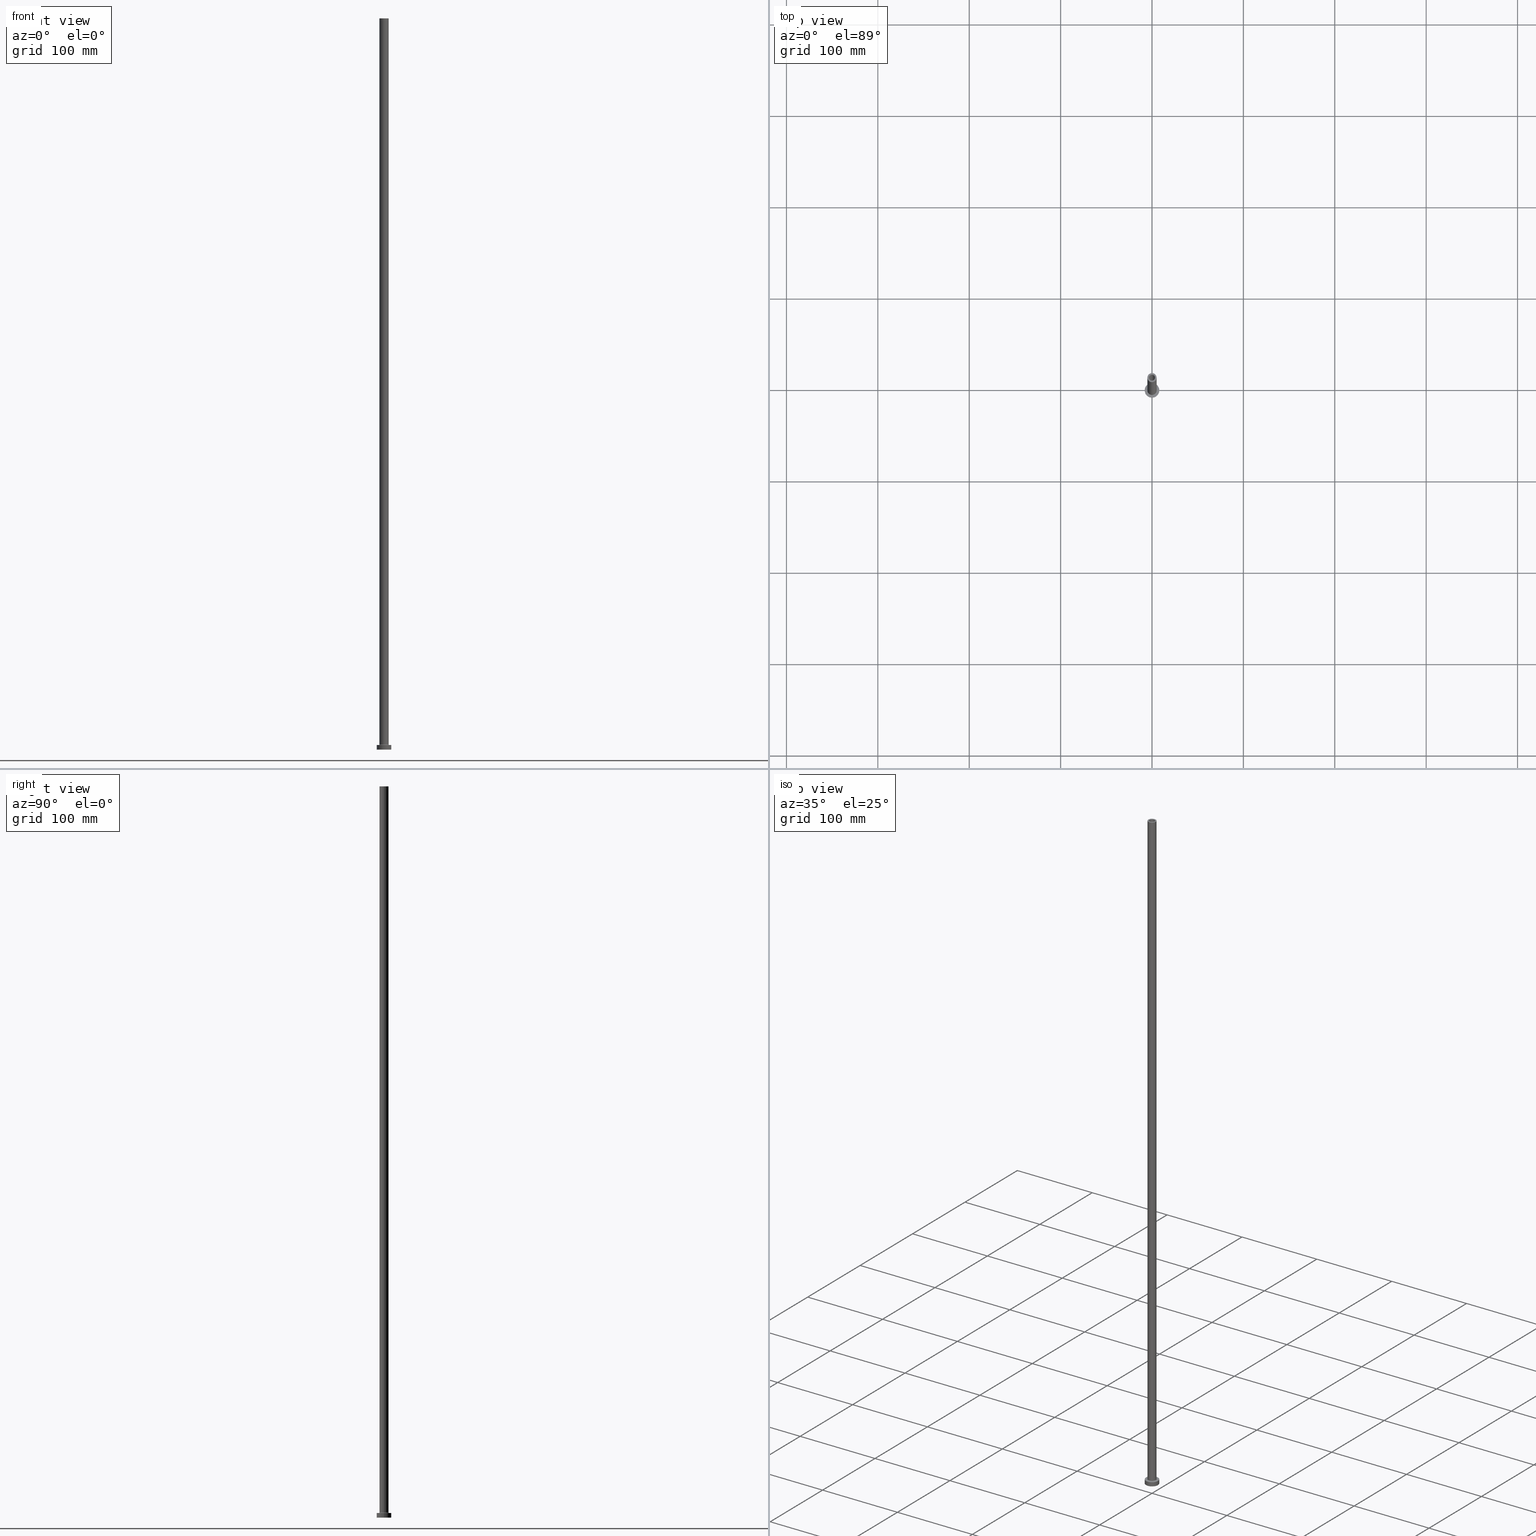
[diagram: canonical four-view strip — front | top / right | iso, engineering-drawing reading convention]
A machine part, canonical four-view strip (front | top / right | iso — engineering-drawing reading convention). The complete STEP part file that produces these views, byte-faithful:
ISO-10303-21;
HEADER;
FILE_DESCRIPTION (( 'STEP AP203' ),
    '1' );
FILE_NAME ('26d1.STEP',
    '2023-02-13T13:59:32',
    ( '' ),
    ( '' ),
    'SwSTEP 2.0',
    'SolidWorks 2019',
    '' );
FILE_SCHEMA (( 'CONFIG_CONTROL_DESIGN' ));
ENDSEC;

DATA;
#1 = DIRECTION ( 'NONE',  ( 0.000000000000000000, 0.000000000000000000, -1.000000000000000000 ) ) ;
#2 = PERSON_AND_ORGANIZATION_ROLE ( 'design_owner' ) ;
#3 = EDGE_LOOP ( 'NONE', ( #334, #10 ) ) ;
#4 = CIRCLE ( 'NONE', #84, 5.500000000000000000 ) ;
#5 = CYLINDRICAL_SURFACE ( 'NONE', #174, 8.000000000000000000 ) ;
#6 = CARTESIAN_POINT ( 'NONE',  ( -3.399999999999999911, 0.000000000000000000, 764.6166522241369421 ) ) ;
#7 = ORIENTED_EDGE ( 'NONE', *, *, #248, .F. ) ;
#8 = DIRECTION ( 'NONE',  ( 0.000000000000000000, 0.000000000000000000, 1.000000000000000000 ) ) ;
#9 = EDGE_CURVE ( 'NONE', #111, #179, #373, .T. ) ;
#10 = ORIENTED_EDGE ( 'NONE', *, *, #263, .F. ) ;
#11 = CARTESIAN_POINT ( 'NONE',  ( -3.250000000000000444, 0.000000000000000000, 800.0000000000000000 ) ) ;
#12 = AXIS2_PLACEMENT_3D ( 'NONE', #275, #303, #158 ) ;
#13 = CARTESIAN_POINT ( 'NONE',  ( 3.250000000000000444, 3.980102097228898231E-16, 800.0000000000000000 ) ) ;
#14 = EDGE_LOOP ( 'NONE', ( #214, #176, #358, #128 ) ) ;
#15 = CARTESIAN_POINT ( 'NONE',  ( 3.399999999999999911, 4.163799117100999573E-16, 764.6166522241369421 ) ) ;
#16 = CC_DESIGN_PERSON_AND_ORGANIZATION_ASSIGNMENT ( #333, #149, ( #56 ) ) ;
#17 = ADVANCED_FACE ( 'NONE', ( #311 ), #273, .T. ) ;
#18 = EDGE_LOOP ( 'NONE', ( #101, #215, #362, #256 ) ) ;
#19 = COORDINATED_UNIVERSAL_TIME_OFFSET ( 1, 0, .AHEAD. ) ;
#20 = ADVANCED_FACE ( 'NONE', ( #31 ), #68, .F. ) ;
#21 = DIRECTION ( 'NONE',  ( -0.000000000000000000, -0.000000000000000000, -1.000000000000000000 ) ) ;
#22 = CARTESIAN_POINT ( 'NONE',  ( -5.500000000000000000, 6.735557395310442023E-16, 4.999999999999975131 ) ) ;
#23 = CIRCLE ( 'NONE', #434, 3.250000000000000444 ) ;
#24 = ADVANCED_BREP_SHAPE_REPRESENTATION ( '26d1', ( #45, #208 ), #440 ) ;
#25 = ORIENTED_EDGE ( 'NONE', *, *, #57, .T. ) ;
#26 = EDGE_CURVE ( 'NONE', #37, #186, #125, .T. ) ;
#27 = CARTESIAN_POINT ( 'NONE',  ( 0.000000000000000000, 0.000000000000000000, 800.0000000000000000 ) ) ;
#28 = AXIS2_PLACEMENT_3D ( 'NONE', #203, #75, #353 ) ;
#29 = DIRECTION ( 'NONE',  ( 1.000000000000000000, 0.000000000000000000, 0.000000000000000000 ) ) ;
#30 = CARTESIAN_POINT ( 'NONE',  ( 0.000000000000000000, 0.000000000000000000, 5.000000000000000000 ) ) ;
#31 = FACE_OUTER_BOUND ( 'NONE', #14, .T. ) ;
#32 = CARTESIAN_POINT ( 'NONE',  ( 0.000000000000000000, 0.000000000000000000, 764.6166522241369421 ) ) ;
#33 = PERSON_AND_ORGANIZATION ( #227, #357 ) ;
#34 = ADVANCED_FACE ( 'NONE', ( #129 ), #5, .T. ) ;
#35 = CIRCLE ( 'NONE', #299, 8.000000000000000000 ) ;
#36 = AXIS2_PLACEMENT_3D ( 'NONE', #138, #283, #387 ) ;
#37 = VERTEX_POINT ( 'NONE', #250 ) ;
#38 = DIRECTION ( 'NONE',  ( 0.000000000000000000, 0.000000000000000000, 1.000000000000000000 ) ) ;
#39 = ORIENTED_EDGE ( 'NONE', *, *, #81, .T. ) ;
#40 = CARTESIAN_POINT ( 'NONE',  ( 0.000000000000000000, 0.000000000000000000, 0.000000000000000000 ) ) ;
#41 = DIRECTION ( 'NONE',  ( 0.000000000000000000, 0.000000000000000000, -1.000000000000000000 ) ) ;
#42 = ORIENTED_EDGE ( 'NONE', *, *, #26, .T. ) ;
#43 = ADVANCED_FACE ( 'NONE', ( #425, #106 ), #235, .F. ) ;
#44 = CARTESIAN_POINT ( 'NONE',  ( 8.000000000000000000, 9.797174393178825657E-16, 5.000000000000000000 ) ) ;
#45 = MANIFOLD_SOLID_BREP ( 'Odebrat vysunut�m4', #237 ) ;
#46 = CIRCLE ( 'NONE', #454, 3.250000000000000444 ) ;
#47 = VERTEX_POINT ( 'NONE', #327 ) ;
#48 = VECTOR ( 'NONE', #126, 1000.000000000000000 ) ;
#49 = LOCAL_TIME ( 14, 59, 32.00000000000000000, #19 ) ;
#50 = DIRECTION ( 'NONE',  ( 0.000000000000000000, 0.000000000000000000, 1.000000000000000000 ) ) ;
#51 = CALENDAR_DATE ( 2023, 13, 2 ) ;
#52 = VERTEX_POINT ( 'NONE', #352 ) ;
#53 = COORDINATED_UNIVERSAL_TIME_OFFSET ( 1, 0, .AHEAD. ) ;
#54 = DIRECTION ( 'NONE',  ( 0.000000000000000000, -1.000000000000000000, 0.000000000000000000 ) ) ;
#55 = VECTOR ( 'NONE', #293, 1000.000000000000000 ) ;
#56 = PRODUCT_DEFINITION_FORMATION_WITH_SPECIFIED_SOURCE ( 'LIBOVOLN�', '', #105, .NOT_KNOWN. ) ;
#57 = EDGE_CURVE ( 'NONE', #412, #390, #196, .T. ) ;
#58 = CARTESIAN_POINT ( 'NONE',  ( 5.000000000000000000, 6.123233995736766282E-16, 5.499999999999949374 ) ) ;
#59 = CIRCLE ( 'NONE', #229, 5.000000000000000000 ) ;
#60 = ORIENTED_EDGE ( 'NONE', *, *, #97, .T. ) ;
#61 = FACE_OUTER_BOUND ( 'NONE', #452, .T. ) ;
#62 = APPLICATION_PROTOCOL_DEFINITION ( 'international standard', 'config_control_design', 1994, #65 ) ;
#63 = EDGE_CURVE ( 'NONE', #74, #290, #392, .T. ) ;
#64 = ORIENTED_EDGE ( 'NONE', *, *, #248, .T. ) ;
#65 = APPLICATION_CONTEXT ( 'configuration controlled 3d designs of mechanical parts and assemblies' ) ;
#66 = CARTESIAN_POINT ( 'NONE',  ( -3.399999999999999911, 0.000000000000000000, 0.000000000000000000 ) ) ;
#67 = ORIENTED_EDGE ( 'NONE', *, *, #306, .T. ) ;
#68 = TOROIDAL_SURFACE ( 'NONE', #401, 5.500000000000000000, 0.5000000000000000000 ) ;
#69 = LOCAL_TIME ( 14, 59, 32.00000000000000000, #53 ) ;
#70 = CARTESIAN_POINT ( 'NONE',  ( 0.000000000000000000, 0.000000000000000000, 5.000000000000000000 ) ) ;
#71 = DIRECTION ( 'NONE',  ( 0.000000000000000000, 0.000000000000000000, 1.000000000000000000 ) ) ;
#72 = SHAPE_DEFINITION_REPRESENTATION ( #272, #24 ) ;
#73 = ORIENTED_EDGE ( 'NONE', *, *, #306, .F. ) ;
#74 = VERTEX_POINT ( 'NONE', #11 ) ;
#75 = DIRECTION ( 'NONE',  ( 0.000000000000000000, 0.000000000000000000, 1.000000000000000000 ) ) ;
#76 = EDGE_CURVE ( 'NONE', #37, #436, #319, .T. ) ;
#77 = VERTEX_POINT ( 'NONE', #433 ) ;
#78 = VECTOR ( 'NONE', #246, 1000.000000000000000 ) ;
#79 = ORIENTED_EDGE ( 'NONE', *, *, #76, .F. ) ;
#80 = DIRECTION ( 'NONE',  ( 1.000000000000000000, 0.000000000000000000, 0.000000000000000000 ) ) ;
#81 = EDGE_CURVE ( 'NONE', #348, #436, #363, .T. ) ;
#82 = ORIENTED_EDGE ( 'NONE', *, *, #124, .T. ) ;
#83 = EDGE_LOOP ( 'NONE', ( #82, #332 ) ) ;
#84 = AXIS2_PLACEMENT_3D ( 'NONE', #30, #317, #280 ) ;
#85 = ORIENTED_EDGE ( 'NONE', *, *, #343, .F. ) ;
#86 = CARTESIAN_POINT ( 'NONE',  ( -8.000000000000000000, 0.000000000000000000, 5.000000000000000000 ) ) ;
#87 = PERSON_AND_ORGANIZATION_ROLE ( 'classification_officer' ) ;
#88 = CARTESIAN_POINT ( 'NONE',  ( 3.250000000000000444, 3.980102097228898231E-16, 800.0000000000000000 ) ) ;
#89 = DIRECTION ( 'NONE',  ( 1.000000000000000000, 0.000000000000000000, 0.000000000000000000 ) ) ;
#90 = DIRECTION ( 'NONE',  ( 1.000000000000000000, 0.000000000000000000, 0.000000000000000000 ) ) ;
#91 = AXIS2_PLACEMENT_3D ( 'NONE', #102, #378, #384 ) ;
#92 = DIRECTION ( 'NONE',  ( 1.000000000000000000, 0.000000000000000000, 0.000000000000000000 ) ) ;
#93 = UNCERTAINTY_MEASURE_WITH_UNIT (LENGTH_MEASURE( 1.000000000000000082E-05 ), #154, 'distance_accuracy_value', 'NONE');
#94 = AXIS2_PLACEMENT_3D ( 'NONE', #274, #108, #80 ) ;
#95 = EDGE_CURVE ( 'NONE', #77, #253, #23, .T. ) ;
#96 = DIRECTION ( 'NONE',  ( -1.000000000000000000, 1.224646799147351482E-16, 0.000000000000000000 ) ) ;
#97 = EDGE_CURVE ( 'NONE', #179, #111, #189, .T. ) ;
#98 = APPLICATION_PROTOCOL_DEFINITION ( 'international standard', 'config_control_design', 1994, #277 ) ;
#99 = ORIENTED_EDGE ( 'NONE', *, *, #449, .T. ) ;
#100 = EDGE_LOOP ( 'NONE', ( #73, #422, #439, #205 ) ) ;
#101 = ORIENTED_EDGE ( 'NONE', *, *, #97, .F. ) ;
#102 = CARTESIAN_POINT ( 'NONE',  ( 0.000000000000000000, 0.000000000000000000, 764.6166522241369421 ) ) ;
#103 = DIRECTION ( 'NONE',  ( 1.000000000000000000, 0.000000000000000000, -0.000000000000000000 ) ) ;
#104 = VECTOR ( 'NONE', #245, 1000.000000000000000 ) ;
#105 = PRODUCT ( '26d1', '26d1', '', ( #232 ) ) ;
#106 = FACE_OUTER_BOUND ( 'NONE', #114, .T. ) ;
#107 = ADVANCED_FACE ( 'NONE', ( #152 ), #443, .T. ) ;
#108 = DIRECTION ( 'NONE',  ( 0.000000000000000000, 0.000000000000000000, 1.000000000000000000 ) ) ;
#109 = APPROVAL_STATUS ( 'not_yet_approved' ) ;
#110 = LINE ( 'NONE', #288, #78 ) ;
#111 = VERTEX_POINT ( 'NONE', #86 ) ;
#112 = DIRECTION ( 'NONE',  ( 1.000000000000000000, 0.000000000000000000, 0.000000000000000000 ) ) ;
#113 = AXIS2_PLACEMENT_3D ( 'NONE', #368, #259, #142 ) ;
#114 = EDGE_LOOP ( 'NONE', ( #85, #355 ) ) ;
#115 = ORIENTED_EDGE ( 'NONE', *, *, #9, .T. ) ;
#116 = DIRECTION ( 'NONE',  ( 0.000000000000000000, 0.000000000000000000, 1.000000000000000000 ) ) ;
#117 = ORIENTED_EDGE ( 'NONE', *, *, #122, .F. ) ;
#118 = CIRCLE ( 'NONE', #12, 3.399999999999999911 ) ;
#119 = EDGE_LOOP ( 'NONE', ( #286, #25 ) ) ;
#120 = ADVANCED_FACE ( 'NONE', ( #188 ), #261, .F. ) ;
#121 = CARTESIAN_POINT ( 'NONE',  ( -8.000000000000000000, 0.000000000000000000, 5.000000000000000000 ) ) ;
#122 = EDGE_CURVE ( 'NONE', #429, #385, #264, .T. ) ;
#123 = EDGE_LOOP ( 'NONE', ( #292, #415 ) ) ;
#124 = EDGE_CURVE ( 'NONE', #253, #77, #46, .T. ) ;
#125 = CIRCLE ( 'NONE', #207, 5.000000000000000000 ) ;
#126 = DIRECTION ( 'NONE',  ( 0.000000000000000000, 0.000000000000000000, -1.000000000000000000 ) ) ;
#127 = DIRECTION ( 'NONE',  ( 1.000000000000000000, 0.000000000000000000, 0.000000000000000000 ) ) ;
#128 = ORIENTED_EDGE ( 'NONE', *, *, #410, .F. ) ;
#129 = FACE_OUTER_BOUND ( 'NONE', #175, .T. ) ;
#130 = CYLINDRICAL_SURFACE ( 'NONE', #356, 3.399999999999999911 ) ;
#131 = EDGE_CURVE ( 'NONE', #382, #385, #118, .T. ) ;
#132 = DIRECTION ( 'NONE',  ( -0.000000000000000000, -0.000000000000000000, -1.000000000000000000 ) ) ;
#133 = FACE_OUTER_BOUND ( 'NONE', #328, .T. ) ;
#134 = CARTESIAN_POINT ( 'NONE',  ( 8.000000000000000000, 9.797174393178825657E-16, 0.000000000000000000 ) ) ;
#135 = AXIS2_PLACEMENT_3D ( 'NONE', #27, #411, #453 ) ;
#136 = DATE_AND_TIME ( #347, #424 ) ;
#137 = CARTESIAN_POINT ( 'NONE',  ( 0.000000000000000000, 0.000000000000000000, 5.000000000000000000 ) ) ;
#138 = CARTESIAN_POINT ( 'NONE',  ( 0.000000000000000000, 0.000000000000000000, 800.0000000000000000 ) ) ;
#139 = COORDINATED_UNIVERSAL_TIME_OFFSET ( 1, 0, .AHEAD. ) ;
#140 = EDGE_LOOP ( 'NONE', ( #79, #183, #268, #39 ) ) ;
#141 = CARTESIAN_POINT ( 'NONE',  ( 0.000000000000000000, 0.000000000000000000, 800.0000000000000000 ) ) ;
#142 = DIRECTION ( 'NONE',  ( -1.000000000000000000, 0.000000000000000000, 0.000000000000000000 ) ) ;
#143 = ORIENTED_EDGE ( 'NONE', *, *, #409, .T. ) ;
#144 = DIRECTION ( 'NONE',  ( -1.000000000000000000, 0.000000000000000000, 0.000000000000000000 ) ) ;
#145 = ADVANCED_FACE ( 'NONE', ( #61 ), #307, .F. ) ;
#146 = AXIS2_PLACEMENT_3D ( 'NONE', #169, #242, #202 ) ;
#147 = ORIENTED_EDGE ( 'NONE', *, *, #343, .T. ) ;
#148 = VERTEX_POINT ( 'NONE', #134 ) ;
#149 = PERSON_AND_ORGANIZATION_ROLE ( 'creator' ) ;
#150 = ORIENTED_EDGE ( 'NONE', *, *, #95, .F. ) ;
#151 = DATE_AND_TIME ( #51, #49 ) ;
#152 = FACE_OUTER_BOUND ( 'NONE', #18, .T. ) ;
#153 = LOCAL_TIME ( 14, 59, 32.00000000000000000, #139 ) ;
#154 =( LENGTH_UNIT ( ) NAMED_UNIT ( * ) SI_UNIT ( .MILLI., .METRE. ) );
#155 = CARTESIAN_POINT ( 'NONE',  ( 0.000000000000000000, 0.000000000000000000, 755.0000000000000000 ) ) ;
#156 = AXIS2_PLACEMENT_3D ( 'NONE', #269, #420, #456 ) ;
#157 = AXIS2_PLACEMENT_3D ( 'NONE', #155, #266, #90 ) ;
#158 = DIRECTION ( 'NONE',  ( 1.000000000000000000, 0.000000000000000000, 0.000000000000000000 ) ) ;
#159 = PERSON_AND_ORGANIZATION ( #227, #357 ) ;
#160 = ADVANCED_FACE ( 'NONE', ( #271, #197 ), #204, .T. ) ;
#161 = CIRCLE ( 'NONE', #94, 8.000000000000000000 ) ;
#162 = DIRECTION ( 'NONE',  ( 0.000000000000000000, 0.000000000000000000, 1.000000000000000000 ) ) ;
#163 = CIRCLE ( 'NONE', #219, 0.5000000000000004441 ) ;
#164 = COORDINATED_UNIVERSAL_TIME_OFFSET ( 1, 0, .AHEAD. ) ;
#165 = ORIENTED_EDGE ( 'NONE', *, *, #457, .T. ) ;
#166 = DIRECTION ( 'NONE',  ( -1.000000000000000000, 0.000000000000000000, 0.000000000000000000 ) ) ;
#167 = FACE_OUTER_BOUND ( 'NONE', #3, .T. ) ;
#168 = PERSON_AND_ORGANIZATION ( #227, #357 ) ;
#169 = CARTESIAN_POINT ( 'NONE',  ( 0.000000000000000000, 0.000000000000000000, 800.0000000000000000 ) ) ;
#170 = CARTESIAN_POINT ( 'NONE',  ( -5.500000000000000000, 6.735557395310442023E-16, 5.499999999999949374 ) ) ;
#171 = CC_DESIGN_DATE_AND_TIME_ASSIGNMENT ( #136, #461, ( #265 ) ) ;
#172 = DIRECTION ( 'NONE',  ( -1.000000000000000000, 0.000000000000000000, 0.000000000000000000 ) ) ;
#173 = CARTESIAN_POINT ( 'NONE',  ( 5.500000000000000000, 0.000000000000000000, 4.999999999999975131 ) ) ;
#174 = AXIS2_PLACEMENT_3D ( 'NONE', #70, #285, #418 ) ;
#175 = EDGE_LOOP ( 'NONE', ( #432, #398, #99, #147 ) ) ;
#176 = ORIENTED_EDGE ( 'NONE', *, *, #193, .T. ) ;
#177 = DIRECTION ( 'NONE',  ( 0.000000000000000000, 0.000000000000000000, 1.000000000000000000 ) ) ;
#178 = APPROVAL ( #276, 'NEUR�EN�' ) ;
#179 = VERTEX_POINT ( 'NONE', #450 ) ;
#180 = DIRECTION ( 'NONE',  ( 0.000000000000000000, 0.000000000000000000, 1.000000000000000000 ) ) ;
#181 = AXIS2_PLACEMENT_3D ( 'NONE', #254, #335, #223 ) ;
#182 = CIRCLE ( 'NONE', #289, 3.399999999999999911 ) ;
#183 = ORIENTED_EDGE ( 'NONE', *, *, #405, .F. ) ;
#184 = LINE ( 'NONE', #15, #55 ) ;
#185 = APPROVAL_DATE_TIME ( #151, #178 ) ;
#186 = VERTEX_POINT ( 'NONE', #351 ) ;
#187 = PRODUCT_RELATED_PRODUCT_CATEGORY ( 'detail', '', ( #105 ) ) ;
#188 = FACE_OUTER_BOUND ( 'NONE', #213, .T. ) ;
#189 = CIRCLE ( 'NONE', #191, 8.000000000000000000 ) ;
#190 = CARTESIAN_POINT ( 'NONE',  ( -5.000000000000000000, 0.000000000000000000, 800.0000000000000000 ) ) ;
#191 = AXIS2_PLACEMENT_3D ( 'NONE', #366, #296, #247 ) ;
#192 = VECTOR ( 'NONE', #408, 1000.000000000000000 ) ;
#193 = EDGE_CURVE ( 'NONE', #348, #412, #423, .T. ) ;
#194 = FACE_BOUND ( 'NONE', #83, .T. ) ;
#195 = ORIENTED_EDGE ( 'NONE', *, *, #63, .T. ) ;
#196 = CIRCLE ( 'NONE', #341, 5.500000000000000000 ) ;
#197 = FACE_OUTER_BOUND ( 'NONE', #295, .T. ) ;
#198 = CC_DESIGN_APPROVAL ( #354, ( #301 ) ) ;
#199 = DIRECTION ( 'NONE',  ( 1.000000000000000000, 0.000000000000000000, -0.000000000000000000 ) ) ;
#200 = DIRECTION ( 'NONE',  ( 1.000000000000000000, 0.000000000000000000, 0.000000000000000000 ) ) ;
#201 = ORIENTED_EDGE ( 'NONE', *, *, #216, .T. ) ;
#202 = DIRECTION ( 'NONE',  ( 1.000000000000000000, 0.000000000000000000, 0.000000000000000000 ) ) ;
#203 = CARTESIAN_POINT ( 'NONE',  ( 0.000000000000000000, 0.000000000000000000, 5.000000000000000000 ) ) ;
#204 = PLANE ( 'NONE',  #135 ) ;
#205 = ORIENTED_EDGE ( 'NONE', *, *, #435, .T. ) ;
#206 = FACE_OUTER_BOUND ( 'NONE', #100, .T. ) ;
#207 = AXIS2_PLACEMENT_3D ( 'NONE', #141, #8, #112 ) ;
#208 = AXIS2_PLACEMENT_3D ( 'NONE', #376, #318, #127 ) ;
#209 = ADVANCED_FACE ( 'NONE', ( #194, #167 ), #312, .F. ) ;
#210 = ORIENTED_EDGE ( 'NONE', *, *, #193, .F. ) ;
#211 = DIRECTION ( 'NONE',  ( -0.000000000000000000, -0.000000000000000000, -1.000000000000000000 ) ) ;
#212 = CYLINDRICAL_SURFACE ( 'NONE', #308, 3.250000000000000444 ) ;
#213 = EDGE_LOOP ( 'NONE', ( #210, #230, #257, #386 ) ) ;
#214 = ORIENTED_EDGE ( 'NONE', *, *, #81, .F. ) ;
#215 = ORIENTED_EDGE ( 'NONE', *, *, #258, .T. ) ;
#216 = EDGE_CURVE ( 'NONE', #436, #348, #59, .T. ) ;
#217 = CARTESIAN_POINT ( 'NONE',  ( 0.000000000000000000, 0.000000000000000000, 755.0000000000000000 ) ) ;
#218 = VECTOR ( 'NONE', #399, 1000.000000000000000 ) ;
#219 = AXIS2_PLACEMENT_3D ( 'NONE', #372, #54, #337 ) ;
#220 = ORIENTED_EDGE ( 'NONE', *, *, #131, .T. ) ;
#221 = DIRECTION ( 'NONE',  ( 1.000000000000000000, 0.000000000000000000, 0.000000000000000000 ) ) ;
#222 = CC_DESIGN_DATE_AND_TIME_ASSIGNMENT ( #298, #441, ( #301 ) ) ;
#223 = DIRECTION ( 'NONE',  ( 1.000000000000000000, 0.000000000000000000, 0.000000000000000000 ) ) ;
#224 = CARTESIAN_POINT ( 'NONE',  ( 0.000000000000000000, 0.000000000000000000, 0.000000000000000000 ) ) ;
#225 = EDGE_CURVE ( 'NONE', #390, #412, #4, .T. ) ;
#226 = VECTOR ( 'NONE', #21, 1000.000000000000000 ) ;
#227 = PERSON ( 'NEUR�EN�', 'NEUR�EN�', 'NEUR�EN�', ('NEUR�EN�'), ('NEUR�EN�'), ('NEUR�EN�') ) ;
#228 = LINE ( 'NONE', #190, #226 ) ;
#229 = AXIS2_PLACEMENT_3D ( 'NONE', #239, #71, #200 ) ;
#230 = ORIENTED_EDGE ( 'NONE', *, *, #216, .F. ) ;
#231 = CYLINDRICAL_SURFACE ( 'NONE', #91, 3.399999999999999911 ) ;
#232 = MECHANICAL_CONTEXT ( 'NONE', #277, 'mechanical' ) ;
#233 = ORIENTED_EDGE ( 'NONE', *, *, #444, .F. ) ;
#234 = ADVANCED_FACE ( 'NONE', ( #427 ), #297, .T. ) ;
#235 = PLANE ( 'NONE',  #236 ) ;
#236 = AXIS2_PLACEMENT_3D ( 'NONE', #40, #177, #199 ) ;
#237 = CLOSED_SHELL ( 'NONE', ( #344, #338, #20, #17, #107, #34, #389, #43, #234, #160, #120, #371, #209, #145 ) ) ;
#238 = CARTESIAN_POINT ( 'NONE',  ( 3.399999999999999911, 4.163799117100999573E-16, 0.000000000000000000 ) ) ;
#239 = CARTESIAN_POINT ( 'NONE',  ( 0.000000000000000000, 0.000000000000000000, 5.499999999999949374 ) ) ;
#240 = CC_DESIGN_APPROVAL ( #291, ( #265 ) ) ;
#241 = APPROVAL_DATE_TIME ( #359, #354 ) ;
#242 = DIRECTION ( 'NONE',  ( 0.000000000000000000, 0.000000000000000000, 1.000000000000000000 ) ) ;
#243 = CARTESIAN_POINT ( 'NONE',  ( 0.000000000000000000, 0.000000000000000000, 800.0000000000000000 ) ) ;
#244 = DIRECTION ( 'NONE',  ( 0.000000000000000000, 0.000000000000000000, 1.000000000000000000 ) ) ;
#245 = DIRECTION ( 'NONE',  ( -0.000000000000000000, -0.000000000000000000, -1.000000000000000000 ) ) ;
#246 = DIRECTION ( 'NONE',  ( 0.000000000000000000, 0.000000000000000000, -1.000000000000000000 ) ) ;
#247 = DIRECTION ( 'NONE',  ( 1.000000000000000000, 0.000000000000000000, 0.000000000000000000 ) ) ;
#248 = EDGE_CURVE ( 'NONE', #290, #74, #320, .T. ) ;
#249 = EDGE_LOOP ( 'NONE', ( #284, #282, #201, #233 ) ) ;
#250 = CARTESIAN_POINT ( 'NONE',  ( 5.000000000000000000, 6.123233995736766282E-16, 800.0000000000000000 ) ) ;
#251 = AXIS2_PLACEMENT_3D ( 'NONE', #217, #180, #329 ) ;
#252 = CIRCLE ( 'NONE', #36, 5.000000000000000000 ) ;
#253 = VERTEX_POINT ( 'NONE', #255 ) ;
#254 = CARTESIAN_POINT ( 'NONE',  ( 0.000000000000000000, 0.000000000000000000, 5.499999999999949374 ) ) ;
#255 = CARTESIAN_POINT ( 'NONE',  ( -3.250000000000000444, 0.000000000000000000, 755.0000000000000000 ) ) ;
#256 = ORIENTED_EDGE ( 'NONE', *, *, #449, .F. ) ;
#257 = ORIENTED_EDGE ( 'NONE', *, *, #410, .T. ) ;
#258 = EDGE_CURVE ( 'NONE', #179, #148, #369, .T. ) ;
#259 = DIRECTION ( 'NONE',  ( -0.000000000000000000, -0.000000000000000000, -1.000000000000000000 ) ) ;
#260 = SECURITY_CLASSIFICATION_LEVEL ( 'unclassified' ) ;
#261 = TOROIDAL_SURFACE ( 'NONE', #407, 5.500000000000000000, 0.5000000000000000000 ) ;
#262 = CARTESIAN_POINT ( 'NONE',  ( 0.000000000000000000, 0.000000000000000000, 800.0000000000000000 ) ) ;
#263 = EDGE_CURVE ( 'NONE', #47, #429, #413, .T. ) ;
#264 = LINE ( 'NONE', #6, #48 ) ;
#265 = PRODUCT_DEFINITION ( 'NEZN�M�', '', #56, #374 ) ;
#266 = DIRECTION ( 'NONE',  ( 0.000000000000000000, 0.000000000000000000, 1.000000000000000000 ) ) ;
#267 = LINE ( 'NONE', #121, #302 ) ;
#268 = ORIENTED_EDGE ( 'NONE', *, *, #444, .T. ) ;
#269 = CARTESIAN_POINT ( 'NONE',  ( 0.000000000000000000, 0.000000000000000000, 800.0000000000000000 ) ) ;
#270 = EDGE_CURVE ( 'NONE', #148, #52, #35, .T. ) ;
#271 = FACE_BOUND ( 'NONE', #360, .T. ) ;
#272 = PRODUCT_DEFINITION_SHAPE ( 'NONE', 'NONE',  #265 ) ;
#273 = CYLINDRICAL_SURFACE ( 'NONE', #300, 5.000000000000000000 ) ;
#274 = CARTESIAN_POINT ( 'NONE',  ( 0.000000000000000000, 0.000000000000000000, 0.000000000000000000 ) ) ;
#275 = CARTESIAN_POINT ( 'NONE',  ( 0.000000000000000000, 0.000000000000000000, 0.000000000000000000 ) ) ;
#276 = APPROVAL_STATUS ( 'not_yet_approved' ) ;
#277 = APPLICATION_CONTEXT ( 'configuration controlled 3d designs of mechanical parts and assemblies' ) ;
#278 = DIRECTION ( 'NONE',  ( 1.000000000000000000, 0.000000000000000000, 0.000000000000000000 ) ) ;
#279 = PLANE ( 'NONE',  #28 ) ;
#280 = DIRECTION ( 'NONE',  ( 1.000000000000000000, 0.000000000000000000, 0.000000000000000000 ) ) ;
#281 = CALENDAR_DATE ( 2023, 13, 2 ) ;
#282 = ORIENTED_EDGE ( 'NONE', *, *, #76, .T. ) ;
#283 = DIRECTION ( 'NONE',  ( 0.000000000000000000, 0.000000000000000000, 1.000000000000000000 ) ) ;
#284 = ORIENTED_EDGE ( 'NONE', *, *, #26, .F. ) ;
#285 = DIRECTION ( 'NONE',  ( -0.000000000000000000, -0.000000000000000000, -1.000000000000000000 ) ) ;
#286 = ORIENTED_EDGE ( 'NONE', *, *, #225, .T. ) ;
#287 = CARTESIAN_POINT ( 'NONE',  ( 5.000000000000000000, 6.123233995736766282E-16, 800.0000000000000000 ) ) ;
#288 = CARTESIAN_POINT ( 'NONE',  ( -3.250000000000000444, 0.000000000000000000, 800.0000000000000000 ) ) ;
#289 = AXIS2_PLACEMENT_3D ( 'NONE', #448, #370, #92 ) ;
#290 = VERTEX_POINT ( 'NONE', #13 ) ;
#291 = APPROVAL ( #349, 'NEUR�EN�' ) ;
#292 = ORIENTED_EDGE ( 'NONE', *, *, #435, .F. ) ;
#293 = DIRECTION ( 'NONE',  ( 0.000000000000000000, 0.000000000000000000, -1.000000000000000000 ) ) ;
#294 = PERSON_AND_ORGANIZATION ( #227, #357 ) ;
#295 = EDGE_LOOP ( 'NONE', ( #428, #42 ) ) ;
#296 = DIRECTION ( 'NONE',  ( 0.000000000000000000, 0.000000000000000000, 1.000000000000000000 ) ) ;
#297 = CYLINDRICAL_SURFACE ( 'NONE', #345, 5.000000000000000000 ) ;
#298 = DATE_AND_TIME ( #336, #69 ) ;
#299 = AXIS2_PLACEMENT_3D ( 'NONE', #224, #50, #89 ) ;
#300 = AXIS2_PLACEMENT_3D ( 'NONE', #315, #211, #172 ) ;
#301 = SECURITY_CLASSIFICATION ( '', '', #260 ) ;
#302 = VECTOR ( 'NONE', #406, 1000.000000000000000 ) ;
#303 = DIRECTION ( 'NONE',  ( -0.000000000000000000, -0.000000000000000000, -1.000000000000000000 ) ) ;
#304 = DATE_AND_TIME ( #281, #393 ) ;
#305 = ORIENTED_EDGE ( 'NONE', *, *, #409, .F. ) ;
#306 = EDGE_CURVE ( 'NONE', #47, #382, #184, .T. ) ;
#307 = CYLINDRICAL_SURFACE ( 'NONE', #156, 3.250000000000000444 ) ;
#308 = AXIS2_PLACEMENT_3D ( 'NONE', #243, #41, #144 ) ;
#309 = APPROVAL_PERSON_ORGANIZATION ( #458, #178, #364 ) ;
#310 = COORDINATED_UNIVERSAL_TIME_OFFSET ( 1, 0, .AHEAD. ) ;
#311 = FACE_OUTER_BOUND ( 'NONE', #249, .T. ) ;
#312 = PLANE ( 'NONE',  #330 ) ;
#313 = CALENDAR_DATE ( 2023, 13, 2 ) ;
#314 = PERSON_AND_ORGANIZATION_ROLE ( 'creator' ) ;
#315 = CARTESIAN_POINT ( 'NONE',  ( 0.000000000000000000, 0.000000000000000000, 800.0000000000000000 ) ) ;
#316 = FACE_OUTER_BOUND ( 'NONE', #365, .T. ) ;
#317 = DIRECTION ( 'NONE',  ( -0.000000000000000000, -0.000000000000000000, -1.000000000000000000 ) ) ;
#318 = DIRECTION ( 'NONE',  ( 0.000000000000000000, 0.000000000000000000, 1.000000000000000000 ) ) ;
#319 = LINE ( 'NONE', #287, #104 ) ;
#320 = CIRCLE ( 'NONE', #446, 3.250000000000000444 ) ;
#321 = DIRECTION ( 'NONE',  ( 0.000000000000000000, 0.000000000000000000, 1.000000000000000000 ) ) ;
#322 = CC_DESIGN_PERSON_AND_ORGANIZATION_ASSIGNMENT ( #168, #314, ( #265 ) ) ;
#323 = ORIENTED_EDGE ( 'NONE', *, *, #367, .T. ) ;
#324 = DIRECTION ( 'NONE',  ( 0.000000000000000000, 0.000000000000000000, 1.000000000000000000 ) ) ;
#325 = DIRECTION ( 'NONE',  ( 1.000000000000000000, 0.000000000000000000, 0.000000000000000000 ) ) ;
#326 = ORIENTED_EDGE ( 'NONE', *, *, #124, .F. ) ;
#327 = CARTESIAN_POINT ( 'NONE',  ( 3.399999999999999911, 4.163799117100999573E-16, 755.0000000000000000 ) ) ;
#328 = EDGE_LOOP ( 'NONE', ( #195, #143, #326, #395 ) ) ;
#329 = DIRECTION ( 'NONE',  ( 1.000000000000000000, 0.000000000000000000, 0.000000000000000000 ) ) ;
#330 = AXIS2_PLACEMENT_3D ( 'NONE', #460, #162, #103 ) ;
#331 = CC_DESIGN_APPROVAL ( #178, ( #56 ) ) ;
#332 = ORIENTED_EDGE ( 'NONE', *, *, #95, .T. ) ;
#333 = PERSON_AND_ORGANIZATION ( #227, #357 ) ;
#334 = ORIENTED_EDGE ( 'NONE', *, *, #457, .F. ) ;
#335 = DIRECTION ( 'NONE',  ( 0.000000000000000000, 0.000000000000000000, 1.000000000000000000 ) ) ;
#336 = CALENDAR_DATE ( 2023, 13, 2 ) ;
#337 = DIRECTION ( 'NONE',  ( 0.000000000000000000, 0.000000000000000000, -1.000000000000000000 ) ) ;
#338 = ADVANCED_FACE ( 'NONE', ( #437 ), #130, .F. ) ;
#339 = CARTESIAN_POINT ( 'NONE',  ( 0.000000000000000000, 0.000000000000000000, 755.0000000000000000 ) ) ;
#340 = DIRECTION ( 'NONE',  ( 1.000000000000000000, 0.000000000000000000, 0.000000000000000000 ) ) ;
#341 = AXIS2_PLACEMENT_3D ( 'NONE', #137, #132, #29 ) ;
#342 = APPROVAL_PERSON_ORGANIZATION ( #33, #354, #431 ) ;
#343 = EDGE_CURVE ( 'NONE', #52, #148, #161, .T. ) ;
#344 = ADVANCED_FACE ( 'NONE', ( #133 ), #212, .F. ) ;
#345 = AXIS2_PLACEMENT_3D ( 'NONE', #262, #397, #404 ) ;
#346 = LINE ( 'NONE', #88, #192 ) ;
#347 = CALENDAR_DATE ( 2023, 13, 2 ) ;
#348 = VERTEX_POINT ( 'NONE', #419 ) ;
#349 = APPROVAL_STATUS ( 'not_yet_approved' ) ;
#350 = AXIS2_PLACEMENT_3D ( 'NONE', #391, #396, #381 ) ;
#351 = CARTESIAN_POINT ( 'NONE',  ( -5.000000000000000000, 0.000000000000000000, 800.0000000000000000 ) ) ;
#352 = CARTESIAN_POINT ( 'NONE',  ( -8.000000000000000000, 0.000000000000000000, 0.000000000000000000 ) ) ;
#353 = DIRECTION ( 'NONE',  ( 1.000000000000000000, 0.000000000000000000, -0.000000000000000000 ) ) ;
#354 = APPROVAL ( #109, 'NEUR�EN�' ) ;
#355 = ORIENTED_EDGE ( 'NONE', *, *, #270, .F. ) ;
#356 = AXIS2_PLACEMENT_3D ( 'NONE', #32, #1, #166 ) ;
#357 = ORGANIZATION ( 'NEUR�EN�', 'NEUR�EN�', '' ) ;
#358 = ORIENTED_EDGE ( 'NONE', *, *, #225, .F. ) ;
#359 = DATE_AND_TIME ( #313, #153 ) ;
#360 = EDGE_LOOP ( 'NONE', ( #400, #7 ) ) ;
#361 = CARTESIAN_POINT ( 'NONE',  ( 0.000000000000000000, 0.000000000000000000, 800.0000000000000000 ) ) ;
#362 = ORIENTED_EDGE ( 'NONE', *, *, #270, .T. ) ;
#363 = CIRCLE ( 'NONE', #181, 5.000000000000000000 ) ;
#364 = APPROVAL_ROLE ( '' ) ;
#365 = EDGE_LOOP ( 'NONE', ( #115, #60 ) ) ;
#366 = CARTESIAN_POINT ( 'NONE',  ( 0.000000000000000000, 0.000000000000000000, 5.000000000000000000 ) ) ;
#367 = EDGE_CURVE ( 'NONE', #74, #253, #110, .T. ) ;
#368 = CARTESIAN_POINT ( 'NONE',  ( 0.000000000000000000, 0.000000000000000000, 5.000000000000000000 ) ) ;
#369 = LINE ( 'NONE', #44, #218 ) ;
#370 = DIRECTION ( 'NONE',  ( -0.000000000000000000, -0.000000000000000000, -1.000000000000000000 ) ) ;
#371 = ADVANCED_FACE ( 'NONE', ( #206 ), #231, .F. ) ;
#372 = CARTESIAN_POINT ( 'NONE',  ( 5.500000000000000000, 0.000000000000000000, 5.499999999999949374 ) ) ;
#373 = CIRCLE ( 'NONE', #350, 8.000000000000000000 ) ;
#374 = DESIGN_CONTEXT ( 'detailed design', #65, 'design' ) ;
#375 = CARTESIAN_POINT ( 'NONE',  ( 0.000000000000000000, 0.000000000000000000, 755.0000000000000000 ) ) ;
#376 = CARTESIAN_POINT ( 'NONE',  ( 0.000000000000000000, 0.000000000000000000, 0.000000000000000000 ) ) ;
#377 = PERSON_AND_ORGANIZATION ( #227, #357 ) ;
#378 = DIRECTION ( 'NONE',  ( 0.000000000000000000, 0.000000000000000000, -1.000000000000000000 ) ) ;
#379 = DIRECTION ( 'NONE',  ( 1.000000000000000000, 0.000000000000000000, 0.000000000000000000 ) ) ;
#380 = AXIS2_PLACEMENT_3D ( 'NONE', #170, #416, #96 ) ;
#381 = DIRECTION ( 'NONE',  ( 1.000000000000000000, 0.000000000000000000, 0.000000000000000000 ) ) ;
#382 = VERTEX_POINT ( 'NONE', #238 ) ;
#383 = CC_DESIGN_PERSON_AND_ORGANIZATION_ASSIGNMENT ( #402, #87, ( #301 ) ) ;
#384 = DIRECTION ( 'NONE',  ( -1.000000000000000000, 0.000000000000000000, 0.000000000000000000 ) ) ;
#385 = VERTEX_POINT ( 'NONE', #66 ) ;
#386 = ORIENTED_EDGE ( 'NONE', *, *, #57, .F. ) ;
#387 = DIRECTION ( 'NONE',  ( 1.000000000000000000, 0.000000000000000000, 0.000000000000000000 ) ) ;
#388 = CARTESIAN_POINT ( 'NONE',  ( 0.000000000000000000, 0.000000000000000000, 5.499999999999949374 ) ) ;
#389 = ADVANCED_FACE ( 'NONE', ( #426, #316 ), #279, .T. ) ;
#390 = VERTEX_POINT ( 'NONE', #173 ) ;
#391 = CARTESIAN_POINT ( 'NONE',  ( 0.000000000000000000, 0.000000000000000000, 5.000000000000000000 ) ) ;
#392 = CIRCLE ( 'NONE', #146, 3.250000000000000444 ) ;
#393 = LOCAL_TIME ( 14, 59, 32.00000000000000000, #164 ) ;
#394 = CC_DESIGN_PERSON_AND_ORGANIZATION_ASSIGNMENT ( #294, #438, ( #56 ) ) ;
#395 = ORIENTED_EDGE ( 'NONE', *, *, #367, .F. ) ;
#396 = DIRECTION ( 'NONE',  ( 0.000000000000000000, 0.000000000000000000, 1.000000000000000000 ) ) ;
#397 = DIRECTION ( 'NONE',  ( -0.000000000000000000, -0.000000000000000000, -1.000000000000000000 ) ) ;
#398 = ORIENTED_EDGE ( 'NONE', *, *, #9, .F. ) ;
#399 = DIRECTION ( 'NONE',  ( -0.000000000000000000, -0.000000000000000000, -1.000000000000000000 ) ) ;
#400 = ORIENTED_EDGE ( 'NONE', *, *, #63, .F. ) ;
#401 = AXIS2_PLACEMENT_3D ( 'NONE', #459, #324, #278 ) ;
#402 = PERSON_AND_ORGANIZATION ( #227, #357 ) ;
#403 =( NAMED_UNIT ( * ) SI_UNIT ( $, .STERADIAN. ) SOLID_ANGLE_UNIT ( ) );
#404 = DIRECTION ( 'NONE',  ( -1.000000000000000000, 0.000000000000000000, 0.000000000000000000 ) ) ;
#405 = EDGE_CURVE ( 'NONE', #186, #37, #252, .T. ) ;
#406 = DIRECTION ( 'NONE',  ( -0.000000000000000000, -0.000000000000000000, -1.000000000000000000 ) ) ;
#407 = AXIS2_PLACEMENT_3D ( 'NONE', #388, #321, #221 ) ;
#408 = DIRECTION ( 'NONE',  ( 0.000000000000000000, 0.000000000000000000, -1.000000000000000000 ) ) ;
#409 = EDGE_CURVE ( 'NONE', #290, #77, #346, .T. ) ;
#410 = EDGE_CURVE ( 'NONE', #436, #390, #163, .T. ) ;
#411 = DIRECTION ( 'NONE',  ( 0.000000000000000000, 0.000000000000000000, 1.000000000000000000 ) ) ;
#412 = VERTEX_POINT ( 'NONE', #22 ) ;
#413 = CIRCLE ( 'NONE', #251, 3.399999999999999911 ) ;
#414 = CC_DESIGN_SECURITY_CLASSIFICATION ( #301, ( #56 ) ) ;
#415 = ORIENTED_EDGE ( 'NONE', *, *, #131, .F. ) ;
#416 = DIRECTION ( 'NONE',  ( 1.224646799147353207E-16, 1.000000000000000000, -0.000000000000000000 ) ) ;
#417 = EDGE_LOOP ( 'NONE', ( #165, #67, #220, #117 ) ) ;
#418 = DIRECTION ( 'NONE',  ( -1.000000000000000000, 0.000000000000000000, 0.000000000000000000 ) ) ;
#419 = CARTESIAN_POINT ( 'NONE',  ( -5.000000000000000000, 0.000000000000000000, 5.499999999999949374 ) ) ;
#420 = DIRECTION ( 'NONE',  ( 0.000000000000000000, 0.000000000000000000, -1.000000000000000000 ) ) ;
#421 = APPROVAL_DATE_TIME ( #304, #291 ) ;
#422 = ORIENTED_EDGE ( 'NONE', *, *, #263, .T. ) ;
#423 = CIRCLE ( 'NONE', #380, 0.5000000000000004441 ) ;
#424 = LOCAL_TIME ( 14, 59, 32.00000000000000000, #310 ) ;
#425 = FACE_BOUND ( 'NONE', #123, .T. ) ;
#426 = FACE_BOUND ( 'NONE', #119, .T. ) ;
#427 = FACE_OUTER_BOUND ( 'NONE', #140, .T. ) ;
#428 = ORIENTED_EDGE ( 'NONE', *, *, #405, .T. ) ;
#429 = VERTEX_POINT ( 'NONE', #442 ) ;
#430 = CC_DESIGN_PERSON_AND_ORGANIZATION_ASSIGNMENT ( #159, #2, ( #105 ) ) ;
#431 = APPROVAL_ROLE ( '' ) ;
#432 = ORIENTED_EDGE ( 'NONE', *, *, #258, .F. ) ;
#433 = CARTESIAN_POINT ( 'NONE',  ( 3.250000000000000444, 3.980102097228898231E-16, 755.0000000000000000 ) ) ;
#434 = AXIS2_PLACEMENT_3D ( 'NONE', #339, #38, #325 ) ;
#435 = EDGE_CURVE ( 'NONE', #385, #382, #182, .T. ) ;
#436 = VERTEX_POINT ( 'NONE', #58 ) ;
#437 = FACE_OUTER_BOUND ( 'NONE', #417, .T. ) ;
#438 = PERSON_AND_ORGANIZATION_ROLE ( 'design_supplier' ) ;
#439 = ORIENTED_EDGE ( 'NONE', *, *, #122, .T. ) ;
#440 =( GEOMETRIC_REPRESENTATION_CONTEXT ( 3 ) GLOBAL_UNCERTAINTY_ASSIGNED_CONTEXT ( ( #93 ) ) GLOBAL_UNIT_ASSIGNED_CONTEXT ( ( #154, #445, #403 ) ) REPRESENTATION_CONTEXT ( 'NONE', 'WORKASPACE' ) );
#441 = DATE_TIME_ROLE ( 'classification_date' ) ;
#442 = CARTESIAN_POINT ( 'NONE',  ( -3.399999999999999911, 0.000000000000000000, 755.0000000000000000 ) ) ;
#443 = CYLINDRICAL_SURFACE ( 'NONE', #113, 8.000000000000000000 ) ;
#444 = EDGE_CURVE ( 'NONE', #186, #348, #228, .T. ) ;
#445 =( NAMED_UNIT ( * ) PLANE_ANGLE_UNIT ( ) SI_UNIT ( $, .RADIAN. ) );
#446 = AXIS2_PLACEMENT_3D ( 'NONE', #361, #116, #340 ) ;
#447 = CIRCLE ( 'NONE', #157, 3.399999999999999911 ) ;
#448 = CARTESIAN_POINT ( 'NONE',  ( 0.000000000000000000, 0.000000000000000000, 0.000000000000000000 ) ) ;
#449 = EDGE_CURVE ( 'NONE', #111, #52, #267, .T. ) ;
#450 = CARTESIAN_POINT ( 'NONE',  ( 8.000000000000000000, 9.797174393178825657E-16, 5.000000000000000000 ) ) ;
#451 = APPROVAL_ROLE ( '' ) ;
#452 = EDGE_LOOP ( 'NONE', ( #305, #64, #323, #150 ) ) ;
#453 = DIRECTION ( 'NONE',  ( 1.000000000000000000, 0.000000000000000000, -0.000000000000000000 ) ) ;
#454 = AXIS2_PLACEMENT_3D ( 'NONE', #375, #244, #379 ) ;
#455 = APPROVAL_PERSON_ORGANIZATION ( #377, #291, #451 ) ;
#456 = DIRECTION ( 'NONE',  ( -1.000000000000000000, 0.000000000000000000, 0.000000000000000000 ) ) ;
#457 = EDGE_CURVE ( 'NONE', #429, #47, #447, .T. ) ;
#458 = PERSON_AND_ORGANIZATION ( #227, #357 ) ;
#459 = CARTESIAN_POINT ( 'NONE',  ( 0.000000000000000000, 0.000000000000000000, 5.499999999999949374 ) ) ;
#460 = CARTESIAN_POINT ( 'NONE',  ( 0.000000000000000000, 0.000000000000000000, 755.0000000000000000 ) ) ;
#461 = DATE_TIME_ROLE ( 'creation_date' ) ;
ENDSEC;
END-ISO-10303-21;
